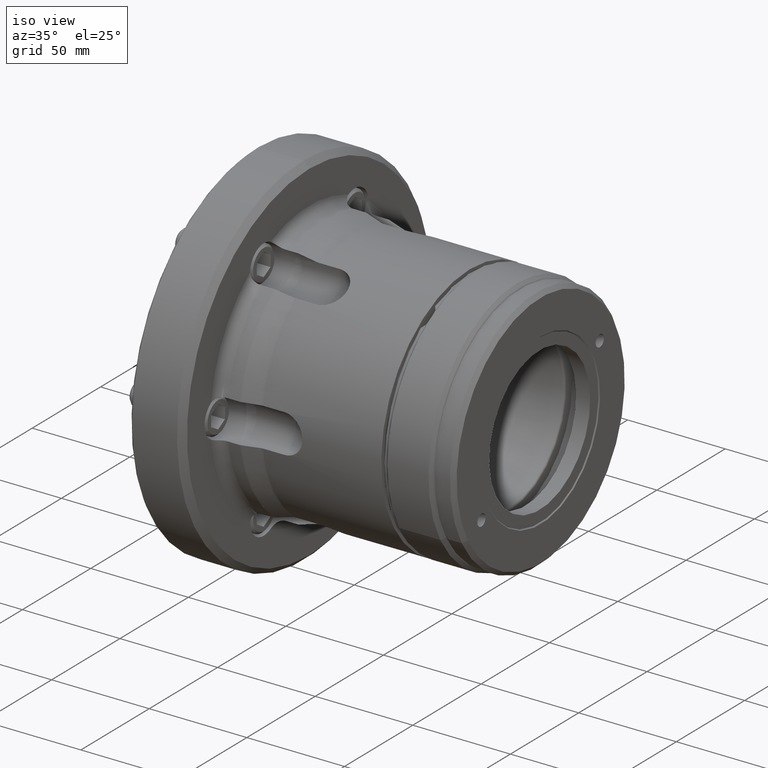
[diagram: clean part render]
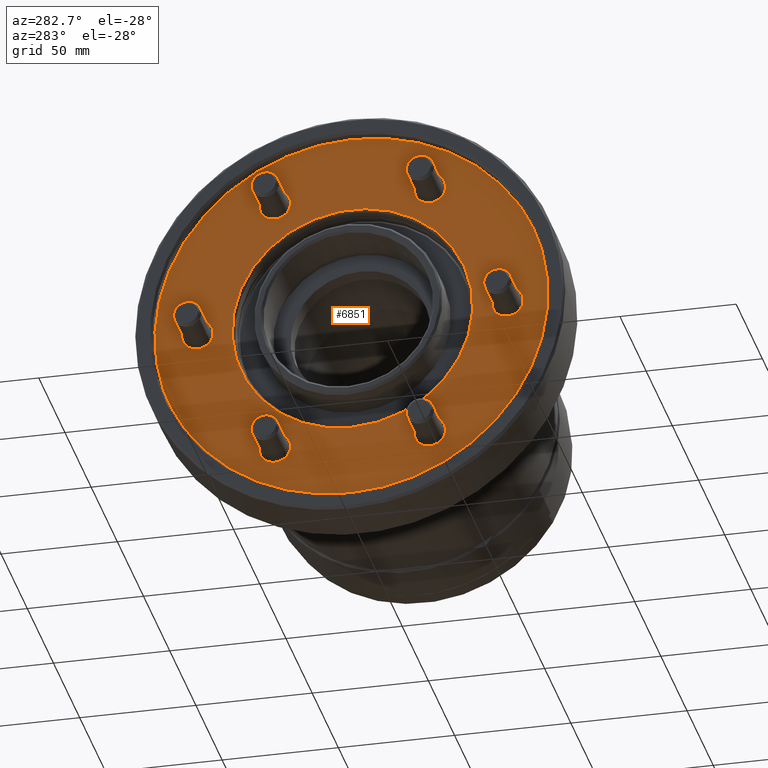
[diagram: tour spotlight — one face highlighted and labeled with its STEP entity id]
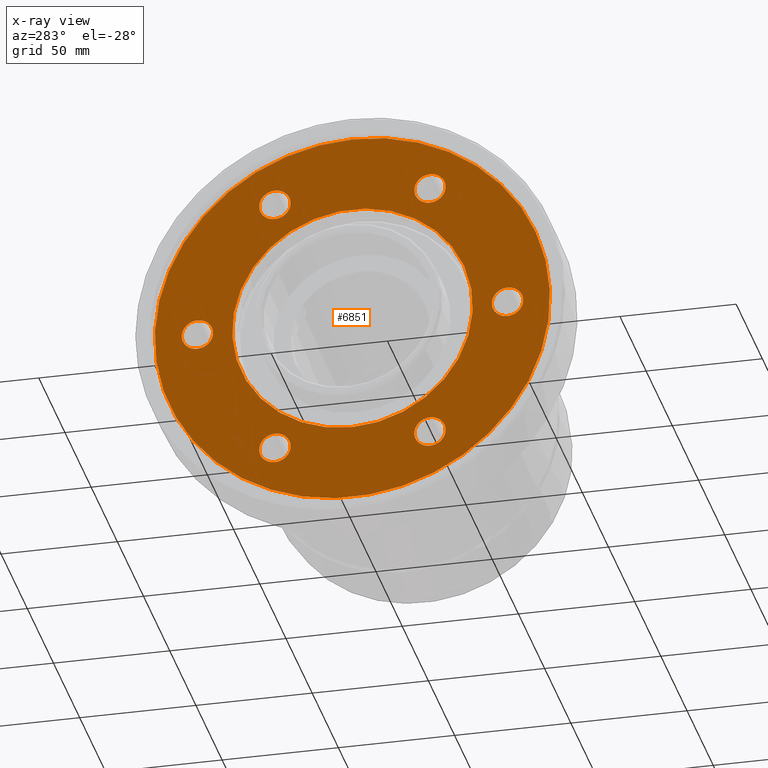
[diagram: x-ray of the same camera — body ghosted, this tour face saturated]
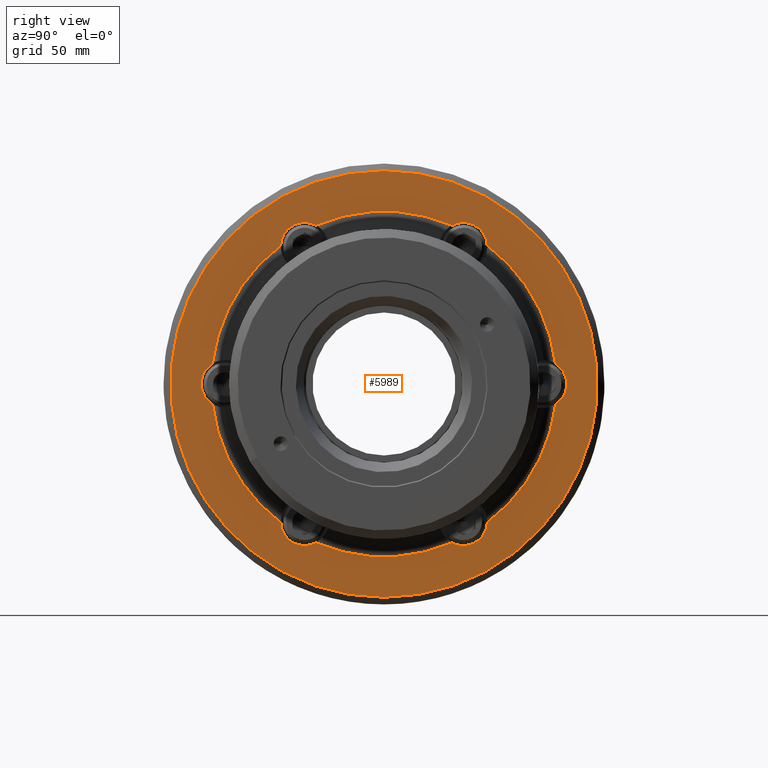
[diagram: tour spotlight — one face highlighted and labeled with its STEP entity id]
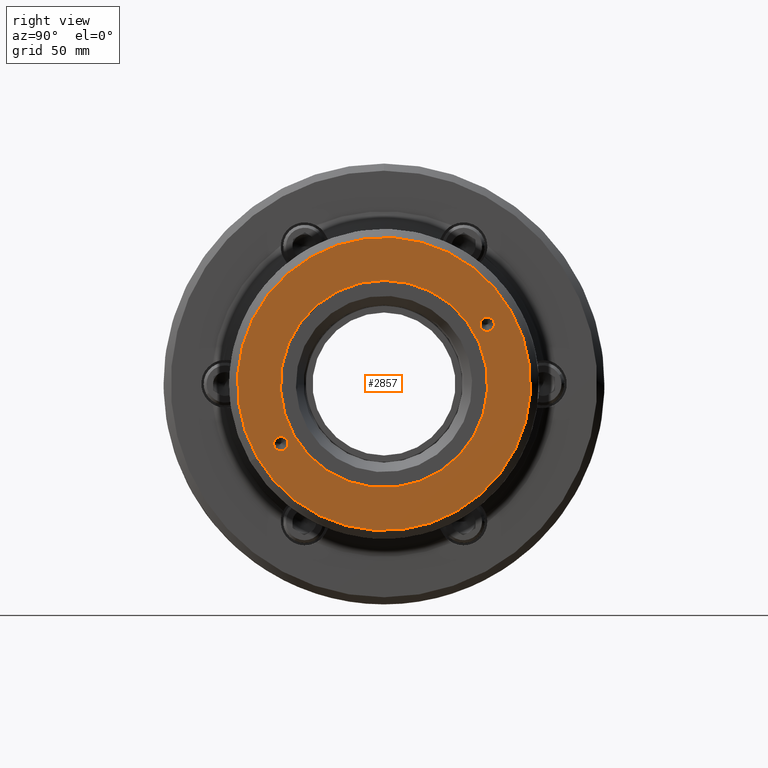
[diagram: tour spotlight — one face highlighted and labeled with its STEP entity id]
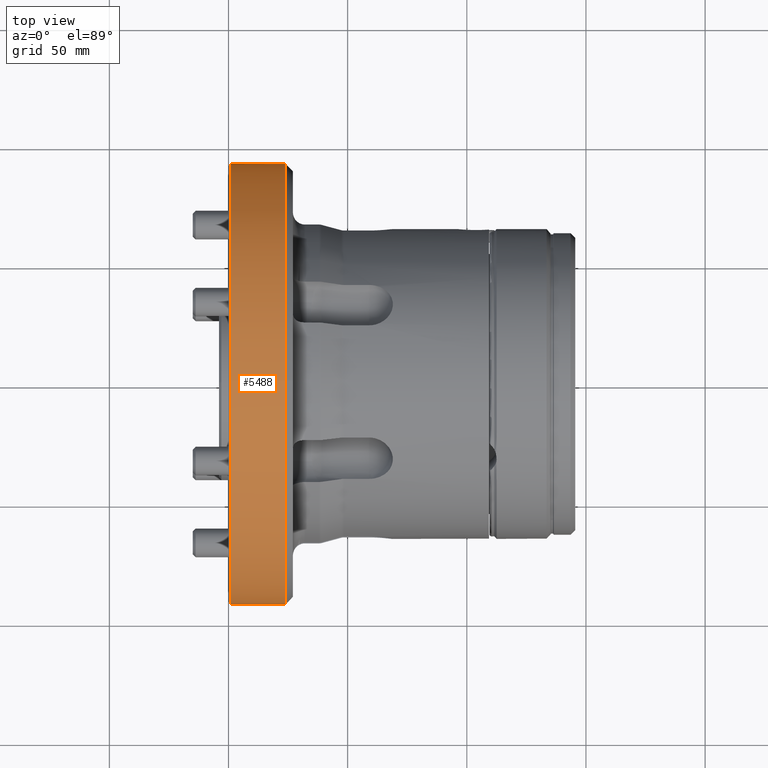
[diagram: tour spotlight — one face highlighted and labeled with its STEP entity id]
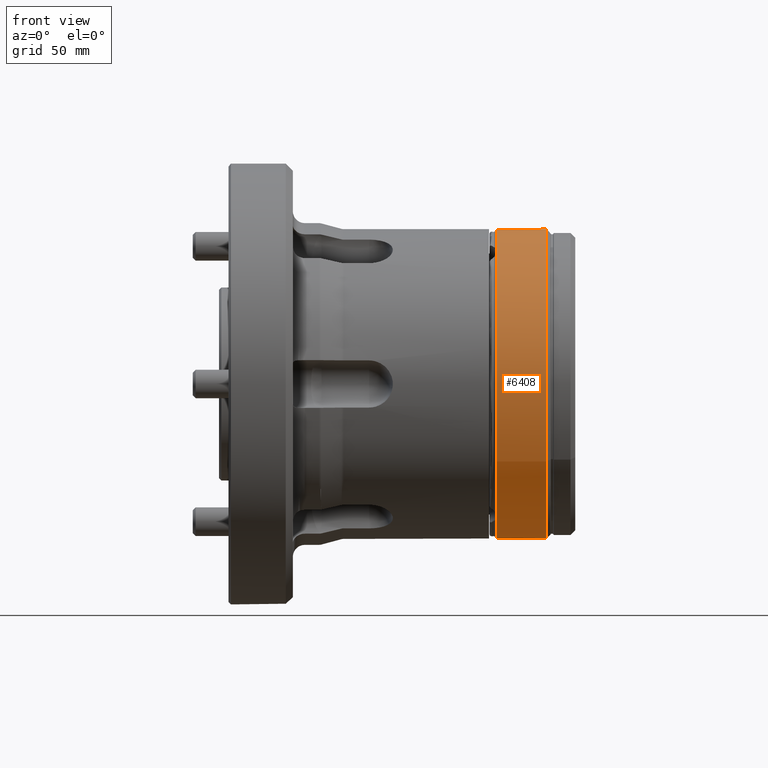
[diagram: tour spotlight — one face highlighted and labeled with its STEP entity id]
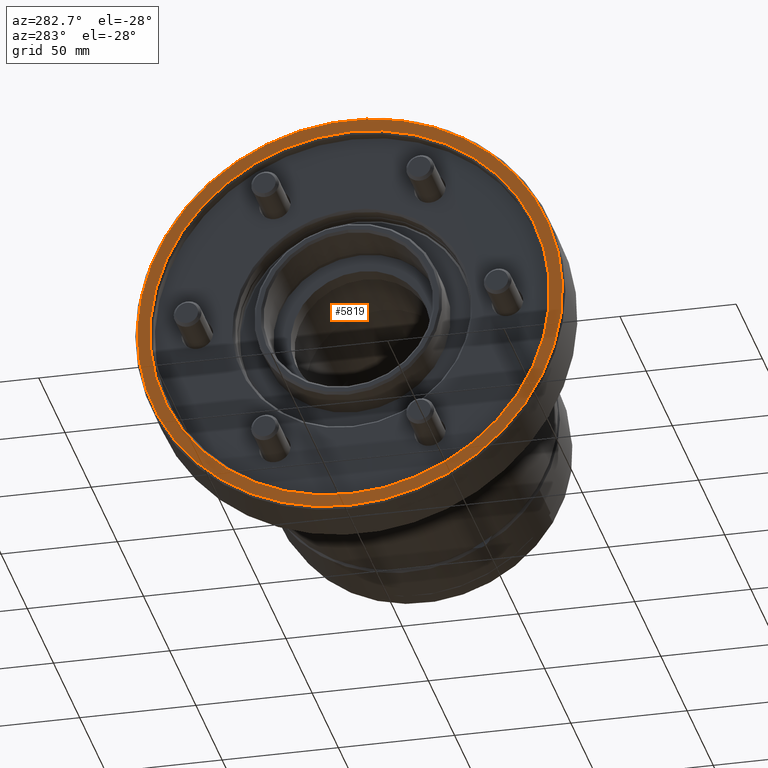
[diagram: tour spotlight — one face highlighted and labeled with its STEP entity id]
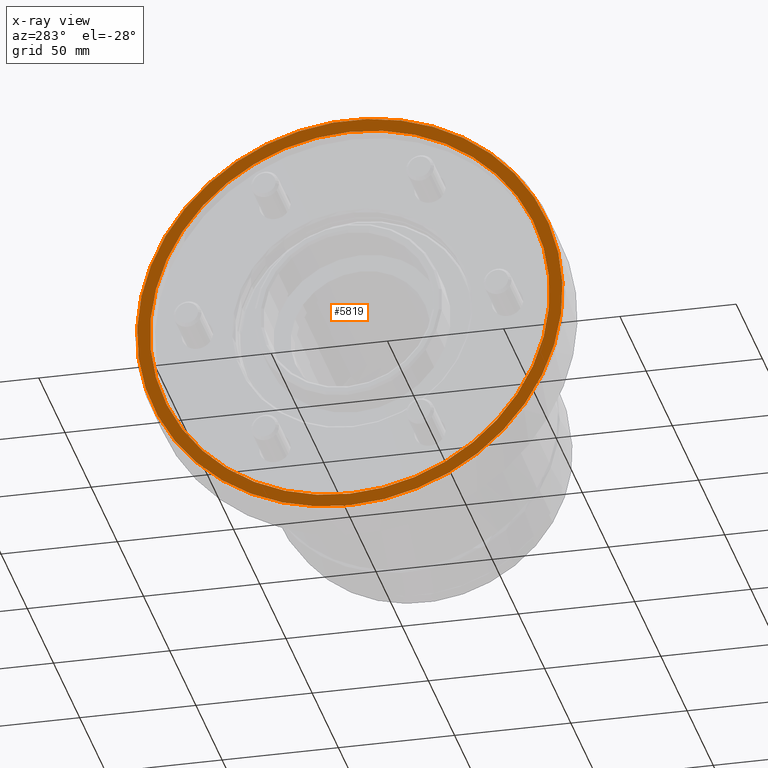
[diagram: x-ray of the same camera — body ghosted, this tour face saturated]
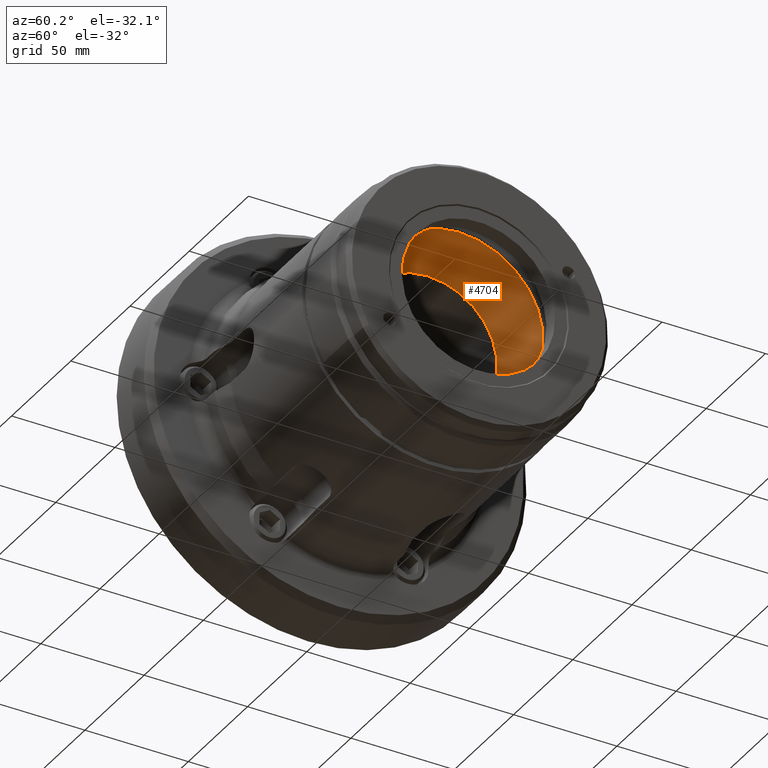
[diagram: tour spotlight — one face highlighted and labeled with its STEP entity id]
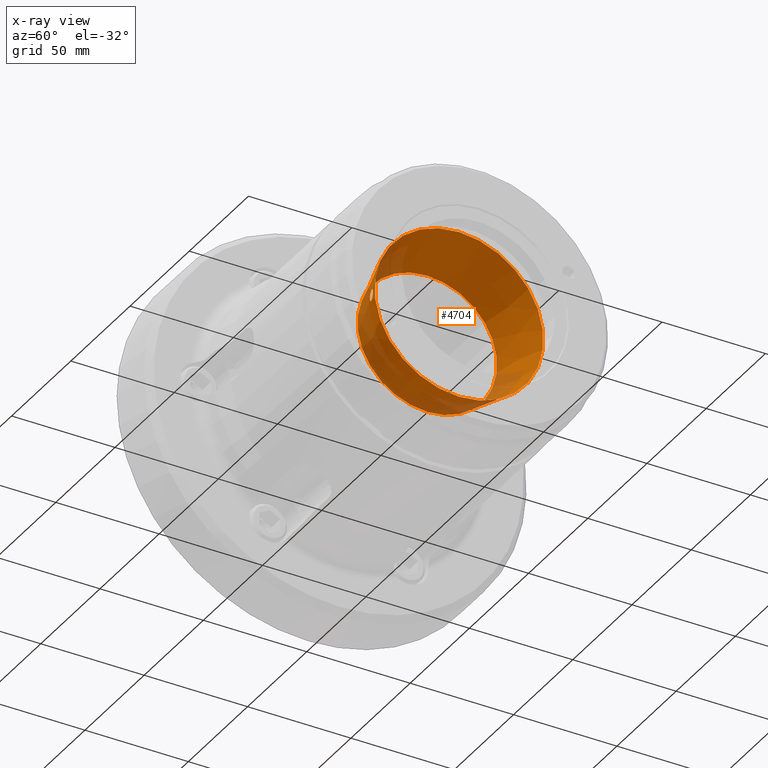
[diagram: x-ray of the same camera — body ghosted, this tour face saturated]
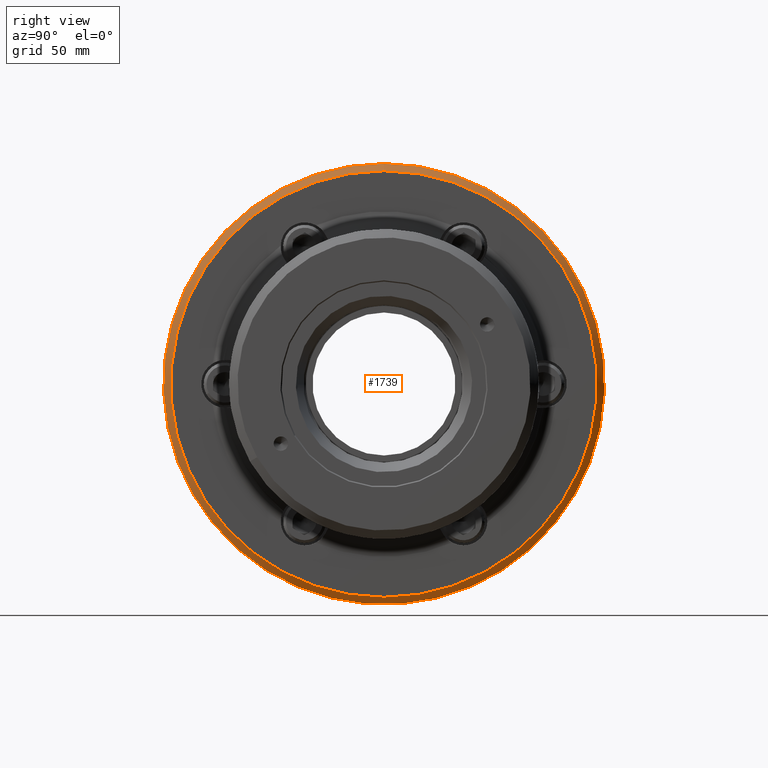
[diagram: tour spotlight — one face highlighted and labeled with its STEP entity id]
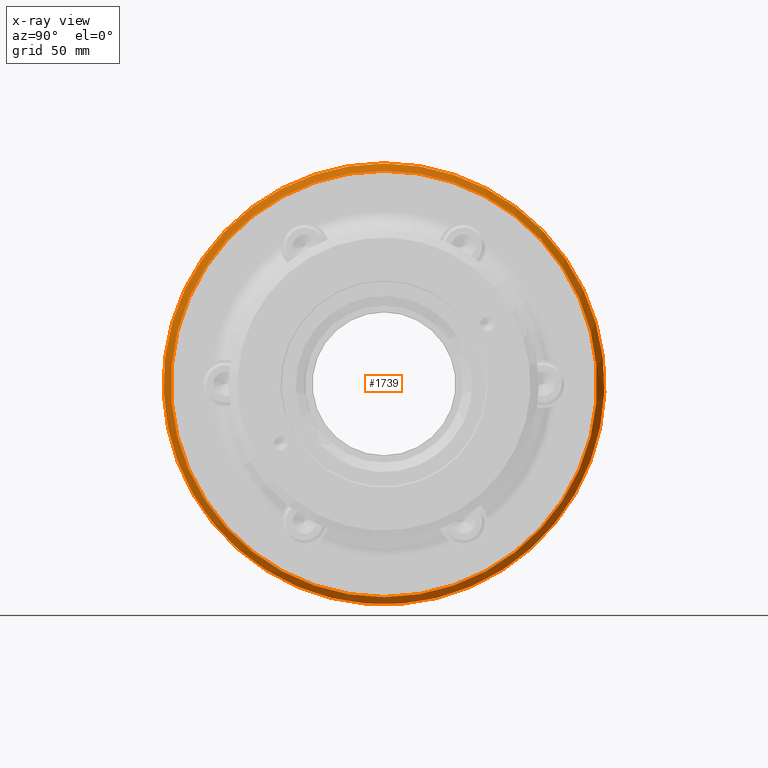
[diagram: x-ray of the same camera — body ghosted, this tour face saturated]
A machine part: a face-by-face anatomy tour. The part has 311 B-rep faces; the first image is the clean iso view, then the 8 largest visible faces are spotlighted one at a time (largest first), each with its STEP entity span.

Face 1 — auxiliary view, entity #6851. An x-ray twin of the same camera follows (body ghosted, this face saturated) — the face is partly hidden behind the body. In plain terms, the highlighted planar face has unit normal (1, 0, 0).
Definition (entity closure, byte-faithful):
#42 = CARTESIAN_POINT ( 'NONE',  ( 5.000000000000004441, -33.35000000000027853, -64.51389443242192101 ) ) ;
#170 = EDGE_CURVE ( 'NONE', #850, #850, #4874, .T. ) ;
#194 = FACE_OUTER_BOUND ( 'NONE', #716, .T. ) ;
#320 = EDGE_LOOP ( 'NONE', ( #2982 ) ) ;
#467 = AXIS2_PLACEMENT_3D ( 'NONE', #6751, #6739, #6732 ) ;
#475 = EDGE_LOOP ( 'NONE', ( #3033 ) ) ;
#525 = AXIS2_PLACEMENT_3D ( 'NONE', #2353, #2341, #2333 ) ;
#645 = EDGE_LOOP ( 'NONE', ( #2993 ) ) ;
#687 = CARTESIAN_POINT ( 'NONE',  ( 5.000000000000004441, 66.70000000000000284, -6.749999999999999112 ) ) ;
#716 = EDGE_LOOP ( 'NONE', ( #3044 ) ) ;
#766 = EDGE_LOOP ( 'NONE', ( #2842 ) ) ;
#795 = FACE_BOUND ( 'NONE', #320, .T. ) ;
#803 = EDGE_CURVE ( 'NONE', #5463, #5463, #2667, .T. ) ;
#831 = DIRECTION ( 'NONE',  ( 0.0000000000000000000, 0.0000000000000000000, -1.000000000000000000 ) ) ;
#850 = VERTEX_POINT ( 'NONE', #2419 ) ;
#1197 = EDGE_CURVE ( 'NONE', #6098, #6098, #1546, .T. ) ;
#1262 = CARTESIAN_POINT ( 'NONE',  ( 5.000000000000000888, 0.0000000000000000000, 0.0000000000000000000 ) ) ;
#1277 = DIRECTION ( 'NONE',  ( 1.000000000000000000, 0.0000000000000000000, 0.0000000000000000000 ) ) ;
#1303 = AXIS2_PLACEMENT_3D ( 'NONE', #3818, #6247, #831 ) ;
#1405 = FACE_BOUND ( 'NONE', #766, .T. ) ;
#1507 = CIRCLE ( 'NONE', #5917, 6.749999999999992006 ) ;
#1546 = CIRCLE ( 'NONE', #525, 6.749999999999999112 ) ;
#1552 = CARTESIAN_POINT ( 'NONE',  ( 5.000000000000004441, -33.34999999999946851, 51.01389443242238286 ) ) ;
#1695 = AXIS2_PLACEMENT_3D ( 'NONE', #3855, #3846, #3837 ) ;
#1765 = EDGE_LOOP ( 'NONE', ( #2827 ) ) ;
#1821 = DIRECTION ( 'NONE',  ( 0.0000000000000000000, 0.0000000000000000000, -1.000000000000000000 ) ) ;
#2022 = DIRECTION ( 'NONE',  ( 0.0000000000000000000, 0.0000000000000000000, -1.000000000000000000 ) ) ;
#2155 = DIRECTION ( 'NONE',  ( 1.000000000000000000, 0.0000000000000000000, 0.0000000000000000000 ) ) ;
#2182 = CARTESIAN_POINT ( 'NONE',  ( 5.000000000000000888, 0.0000000000000000000, 85.00000000000000000 ) ) ;
#2333 = DIRECTION ( 'NONE',  ( 0.0000000000000000000, 0.0000000000000000000, -1.000000000000000000 ) ) ;
#2341 = DIRECTION ( 'NONE',  ( 1.000000000000000000, 0.0000000000000000000, 0.0000000000000000000 ) ) ;
#2353 = CARTESIAN_POINT ( 'NONE',  ( 5.000000000000004441, 66.70000000000000284, 0.0000000000000000000 ) ) ;
#2406 = CARTESIAN_POINT ( 'NONE',  ( 5.000000000000005329, 0.0000000000000000000, -51.74999999999996447 ) ) ;
#2419 = CARTESIAN_POINT ( 'NONE',  ( 5.000000000000004441, -66.70000000000000284, -6.749999999999995559 ) ) ;
#2598 = PLANE ( 'NONE',  #4013 ) ;
#2667 = CIRCLE ( 'NONE', #1695, 6.749999999999999112 ) ;
#2778 = CIRCLE ( 'NONE', #7235, 51.74999999999996447 ) ;
#2827 = ORIENTED_EDGE ( 'NONE', *, *, #6024, .T. ) ;
#2842 = ORIENTED_EDGE ( 'NONE', *, *, #4357, .T. ) ;
#2853 = EDGE_CURVE ( 'NONE', #3780, #3780, #4678, .T. ) ;
#2881 = ORIENTED_EDGE ( 'NONE', *, *, #170, .T. ) ;
#2904 = EDGE_LOOP ( 'NONE', ( #2943 ) ) ;
#2943 = ORIENTED_EDGE ( 'NONE', *, *, #803, .T. ) ;
#2965 = CARTESIAN_POINT ( 'NONE',  ( 5.000000000000004441, 33.35000000000067644, 57.76389443242167943 ) ) ;
#2982 = ORIENTED_EDGE ( 'NONE', *, *, #2853, .T. ) ;
#2993 = ORIENTED_EDGE ( 'NONE', *, *, #1197, .T. ) ;
#3033 = ORIENTED_EDGE ( 'NONE', *, *, #7442, .T. ) ;
#3044 = ORIENTED_EDGE ( 'NONE', *, *, #4853, .T. ) ;
#3055 = AXIS2_PLACEMENT_3D ( 'NONE', #6679, #1277, #3650 ) ;
#3184 = FACE_BOUND ( 'NONE', #645, .T. ) ;
#3436 = AXIS2_PLACEMENT_3D ( 'NONE', #1262, #3635, #6070 ) ;
#3462 = VERTEX_POINT ( 'NONE', #5891 ) ;
#3635 = DIRECTION ( 'NONE',  ( -1.000000000000000000, -0.0000000000000000000, -0.0000000000000000000 ) ) ;
#3650 = DIRECTION ( 'NONE',  ( 0.0000000000000000000, 0.0000000000000000000, -1.000000000000000000 ) ) ;
#3777 = FACE_BOUND ( 'NONE', #6515, .T. ) ;
#3780 = VERTEX_POINT ( 'NONE', #6211 ) ;
#3818 = CARTESIAN_POINT ( 'NONE',  ( 5.000000000000004441, 33.34999999999987352, -57.76389443242214128 ) ) ;
#3837 = DIRECTION ( 'NONE',  ( 0.0000000000000000000, 0.0000000000000000000, -1.000000000000000000 ) ) ;
#3846 = DIRECTION ( 'NONE',  ( 1.000000000000000000, 0.0000000000000000000, 0.0000000000000000000 ) ) ;
#3855 = CARTESIAN_POINT ( 'NONE',  ( 5.000000000000004441, -33.35000000000027853, -57.76389443242192101 ) ) ;
#4013 = AXIS2_PLACEMENT_3D ( 'NONE', #5008, #7455, #2022 ) ;
#4357 = EDGE_CURVE ( 'NONE', #6965, #6965, #6482, .T. ) ;
#4539 = DIRECTION ( 'NONE',  ( 0.0000000000000000000, 0.0000000000000000000, -1.000000000000000000 ) ) ;
#4678 = CIRCLE ( 'NONE', #1303, 6.749999999999999112 ) ;
#4853 = EDGE_CURVE ( 'NONE', #7615, #7615, #6869, .T. ) ;
#4874 = CIRCLE ( 'NONE', #467, 6.749999999999995559 ) ;
#5008 = CARTESIAN_POINT ( 'NONE',  ( 5.000000000000005329, 85.00000000000000000, 0.0000000000000000000 ) ) ;
#5463 = VERTEX_POINT ( 'NONE', #42 ) ;
#5618 = FACE_BOUND ( 'NONE', #475, .T. ) ;
#5891 = CARTESIAN_POINT ( 'NONE',  ( 5.000000000000004441, 33.35000000000067644, 51.01389443242168653 ) ) ;
#5917 = AXIS2_PLACEMENT_3D ( 'NONE', #2965, #7240, #1821 ) ;
#6024 = EDGE_CURVE ( 'NONE', #3462, #3462, #1507, .T. ) ;
#6070 = DIRECTION ( 'NONE',  ( 0.0000000000000000000, 0.0000000000000000000, 1.000000000000000000 ) ) ;
#6098 = VERTEX_POINT ( 'NONE', #687 ) ;
#6207 = FACE_BOUND ( 'NONE', #2904, .T. ) ;
#6211 = CARTESIAN_POINT ( 'NONE',  ( 5.000000000000004441, 33.34999999999987352, -64.51389443242214838 ) ) ;
#6247 = DIRECTION ( 'NONE',  ( 1.000000000000000000, 0.0000000000000000000, 0.0000000000000000000 ) ) ;
#6482 = CIRCLE ( 'NONE', #3055, 6.749999999999992006 ) ;
#6515 = EDGE_LOOP ( 'NONE', ( #2881 ) ) ;
#6679 = CARTESIAN_POINT ( 'NONE',  ( 5.000000000000004441, -33.34999999999946851, 57.76389443242236865 ) ) ;
#6732 = DIRECTION ( 'NONE',  ( 0.0000000000000000000, 0.0000000000000000000, -1.000000000000000000 ) ) ;
#6739 = DIRECTION ( 'NONE',  ( 1.000000000000000000, 0.0000000000000000000, 0.0000000000000000000 ) ) ;
#6751 = CARTESIAN_POINT ( 'NONE',  ( 5.000000000000004441, -66.70000000000000284, 0.0000000000000000000 ) ) ;
#6802 = FACE_BOUND ( 'NONE', #1765, .T. ) ;
#6851 = ADVANCED_FACE ( 'NONE', ( #6802, #1405, #3777, #6207, #795, #3184, #5618, #194 ), #2598, .F. ) ;
#6869 = CIRCLE ( 'NONE', #3436, 85.00000000000000000 ) ;
#6965 = VERTEX_POINT ( 'NONE', #1552 ) ;
#7235 = AXIS2_PLACEMENT_3D ( 'NONE', #7594, #2155, #4539 ) ;
#7240 = DIRECTION ( 'NONE',  ( 1.000000000000000000, 0.0000000000000000000, 0.0000000000000000000 ) ) ;
#7442 = EDGE_CURVE ( 'NONE', #7855, #7855, #2778, .T. ) ;
#7455 = DIRECTION ( 'NONE',  ( 1.000000000000000000, 0.0000000000000000000, 0.0000000000000000000 ) ) ;
#7594 = CARTESIAN_POINT ( 'NONE',  ( 5.000000000000005329, 0.0000000000000000000, 0.0000000000000000000 ) ) ;
#7615 = VERTEX_POINT ( 'NONE', #2182 ) ;
#7855 = VERTEX_POINT ( 'NONE', #2406 ) ;

Face 2 — right view, entity #5989. In plain terms, the highlighted planar face has unit normal (-1, 0, 0).
Definition (entity closure, byte-faithful):
#70 = EDGE_LOOP ( 'NONE', ( #2376 ) ) ;
#77 = VERTEX_POINT ( 'NONE', #2489 ) ;
#162 = CIRCLE ( 'NONE', #4564, 72.50000000000001421 ) ;
#238 = DIRECTION ( 'NONE',  ( 0.0000000000000000000, 0.0000000000000000000, -1.000000000000000000 ) ) ;
#240 = VERTEX_POINT ( 'NONE', #6437 ) ;
#343 = CARTESIAN_POINT ( 'NONE',  ( 27.00000000000000355, 33.34999999999987352, -57.76389443242214128 ) ) ;
#349 = CIRCLE ( 'NONE', #5784, 72.50000000000001421 ) ;
#494 = CIRCLE ( 'NONE', #4899, 72.50000000000001421 ) ;
#613 = EDGE_CURVE ( 'NONE', #2360, #1389, #2433, .T. ) ;
#693 = AXIS2_PLACEMENT_3D ( 'NONE', #343, #2746, #5162 ) ;
#739 = CARTESIAN_POINT ( 'NONE',  ( 27.00000000000000355, -72.00254872563837694, 8.478382924368936813 ) ) ;
#790 = EDGE_LOOP ( 'NONE', ( #2391, #2410, #2412, #2463, #2493, #2529, #2552, #2578, #2587, #2642, #2652, #2689 ) ) ;
#791 = AXIS2_PLACEMENT_3D ( 'NONE', #5365, #7817, #2370 ) ;
#806 = CIRCLE ( 'NONE', #5213, 10.00000000000000178 ) ;
#957 = EDGE_CURVE ( 'NONE', #4432, #4659, #6837, .T. ) ;
#990 = VERTEX_POINT ( 'NONE', #3412 ) ;
#992 = AXIS2_PLACEMENT_3D ( 'NONE', #2659, #6912, #1499 ) ;
#1031 = AXIS2_PLACEMENT_3D ( 'NONE', #3442, #3435, #3421 ) ;
#1185 = DIRECTION ( 'NONE',  ( -1.000000000000000000, 0.0000000000000000000, -0.0000000000000000000 ) ) ;
#1358 = EDGE_CURVE ( 'NONE', #77, #77, #2067, .T. ) ;
#1376 = DIRECTION ( 'NONE',  ( -1.000000000000000000, -0.0000000000000000000, -0.0000000000000000000 ) ) ;
#1389 = VERTEX_POINT ( 'NONE', #1653 ) ;
#1452 = CARTESIAN_POINT ( 'NONE',  ( 27.00000000000000355, -66.70000000000000284, 0.0000000000000000000 ) ) ;
#1469 = DIRECTION ( 'NONE',  ( 0.0000000000000000000, 0.0000000000000000000, 1.000000000000000000 ) ) ;
#1499 = DIRECTION ( 'NONE',  ( 0.0000000000000000000, 0.0000000000000000000, -1.000000000000000000 ) ) ;
#1557 = VERTEX_POINT ( 'NONE', #739 ) ;
#1647 = DIRECTION ( 'NONE',  ( -1.000000000000000000, -0.0000000000000000000, -0.0000000000000000000 ) ) ;
#1653 = CARTESIAN_POINT ( 'NONE',  ( 27.00000000000000355, 28.65877936730302622, 66.59522779581317309 ) ) ;
#1728 = DIRECTION ( 'NONE',  ( 0.0000000000000000000, 0.0000000000000000000, -1.000000000000000000 ) ) ;
#1731 = DIRECTION ( 'NONE',  ( 0.0000000000000000000, 0.0000000000000000000, 1.000000000000000000 ) ) ;
#1735 = DIRECTION ( 'NONE',  ( 1.000000000000000000, 0.0000000000000000000, 0.0000000000000000000 ) ) ;
#1744 = CARTESIAN_POINT ( 'NONE',  ( 27.00000000000000355, 72.00254872563718322, 8.478382924369682883 ) ) ;
#1746 = CARTESIAN_POINT ( 'NONE',  ( 27.00000000000000355, 0.0000000000000000000, 0.0000000000000000000 ) ) ;
#1781 = FACE_BOUND ( 'NONE', #790, .T. ) ;
#1789 = DIRECTION ( 'NONE',  ( 0.0000000000000000000, 0.0000000000000000000, 1.000000000000000000 ) ) ;
#1812 = AXIS2_PLACEMENT_3D ( 'NONE', #4758, #7207, #1789 ) ;
#2067 = CIRCLE ( 'NONE', #2916, 89.50000000000001421 ) ;
#2360 = VERTEX_POINT ( 'NONE', #5562 ) ;
#2362 = CARTESIAN_POINT ( 'NONE',  ( 27.00000000000000355, -33.35000000000027853, -57.76389443242192101 ) ) ;
#2370 = DIRECTION ( 'NONE',  ( 0.0000000000000000000, 0.0000000000000000000, 1.000000000000000000 ) ) ;
#2376 = ORIENTED_EDGE ( 'NONE', *, *, #1358, .T. ) ;
#2391 = ORIENTED_EDGE ( 'NONE', *, *, #613, .F. ) ;
#2410 = ORIENTED_EDGE ( 'NONE', *, *, #3139, .T. ) ;
#2412 = ORIENTED_EDGE ( 'NONE', *, *, #7752, .F. ) ;
#2433 = CIRCLE ( 'NONE', #4433, 9.999999999999994671 ) ;
#2463 = ORIENTED_EDGE ( 'NONE', *, *, #6542, .T. ) ;
#2489 = CARTESIAN_POINT ( 'NONE',  ( 27.00000000000000355, 0.0000000000000000000, 89.50000000000001421 ) ) ;
#2493 = ORIENTED_EDGE ( 'NONE', *, *, #5489, .F. ) ;
#2529 = ORIENTED_EDGE ( 'NONE', *, *, #957, .T. ) ;
#2552 = ORIENTED_EDGE ( 'NONE', *, *, #4746, .F. ) ;
#2578 = ORIENTED_EDGE ( 'NONE', *, *, #3102, .T. ) ;
#2587 = ORIENTED_EDGE ( 'NONE', *, *, #7692, .F. ) ;
#2642 = ORIENTED_EDGE ( 'NONE', *, *, #5674, .T. ) ;
#2652 = ORIENTED_EDGE ( 'NONE', *, *, #5705, .F. ) ;
#2653 = CIRCLE ( 'NONE', #7102, 9.999999999999994671 ) ;
#2659 = CARTESIAN_POINT ( 'NONE',  ( 27.00000000000000355, -33.34999999999946851, 57.76389443242236865 ) ) ;
#2689 = ORIENTED_EDGE ( 'NONE', *, *, #4137, .T. ) ;
#2746 = DIRECTION ( 'NONE',  ( 1.000000000000000000, -0.0000000000000000000, -0.0000000000000000000 ) ) ;
#2871 = CARTESIAN_POINT ( 'NONE',  ( 27.00000000000000355, 66.70000000000000284, 0.0000000000000000000 ) ) ;
#2916 = AXIS2_PLACEMENT_3D ( 'NONE', #1746, #1735, #1731 ) ;
#3102 = EDGE_CURVE ( 'NONE', #4919, #240, #4179, .T. ) ;
#3132 = CARTESIAN_POINT ( 'NONE',  ( 27.00000000000000355, 28.65877936730210251, -66.59522779581357099 ) ) ;
#3139 = EDGE_CURVE ( 'NONE', #2360, #5976, #5189, .T. ) ;
#3412 = CARTESIAN_POINT ( 'NONE',  ( 27.00000000000000355, -43.34376935833439859, 58.11684487144422206 ) ) ;
#3421 = DIRECTION ( 'NONE',  ( 0.0000000000000000000, 0.0000000000000000000, 1.000000000000000000 ) ) ;
#3435 = DIRECTION ( 'NONE',  ( -1.000000000000000000, -0.0000000000000000000, -0.0000000000000000000 ) ) ;
#3442 = CARTESIAN_POINT ( 'NONE',  ( 27.00000000000000355, 0.0000000000000000000, 0.0000000000000000000 ) ) ;
#3565 = DIRECTION ( 'NONE',  ( -0.0000000000000000000, 0.0000000000000000000, 1.000000000000000000 ) ) ;
#3751 = DIRECTION ( 'NONE',  ( 0.0000000000000000000, 0.0000000000000000000, 1.000000000000000000 ) ) ;
#4014 = VERTEX_POINT ( 'NONE', #4191 ) ;
#4017 = DIRECTION ( 'NONE',  ( 0.0000000000000000000, 0.0000000000000000000, 1.000000000000000000 ) ) ;
#4083 = CARTESIAN_POINT ( 'NONE',  ( 27.00000000000000355, -28.65877936730255016, -66.59522779581338625 ) ) ;
#4103 = CARTESIAN_POINT ( 'NONE',  ( 27.00000000000000355, 72.00254872563718322, -8.478382924369682883 ) ) ;
#4137 = EDGE_CURVE ( 'NONE', #4839, #1389, #162, .T. ) ;
#4156 = PLANE ( 'NONE',  #4895 ) ;
#4179 = CIRCLE ( 'NONE', #791, 72.50000000000001421 ) ;
#4191 = CARTESIAN_POINT ( 'NONE',  ( 27.00000000000000355, 43.34376935833524414, -58.11684487143141098 ) ) ;
#4302 = AXIS2_PLACEMENT_3D ( 'NONE', #2871, #7138, #1728 ) ;
#4379 = CIRCLE ( 'NONE', #992, 9.999999999999994671 ) ;
#4432 = VERTEX_POINT ( 'NONE', #3132 ) ;
#4433 = AXIS2_PLACEMENT_3D ( 'NONE', #4828, #4817, #4803 ) ;
#4440 = CARTESIAN_POINT ( 'NONE',  ( 27.00000000000000355, 0.0000000000000000000, 0.0000000000000000000 ) ) ;
#4564 = AXIS2_PLACEMENT_3D ( 'NONE', #6774, #1376, #3751 ) ;
#4659 = VERTEX_POINT ( 'NONE', #4083 ) ;
#4746 = EDGE_CURVE ( 'NONE', #4919, #4659, #806, .T. ) ;
#4748 = DIRECTION ( 'NONE',  ( 1.000000000000000000, -0.0000000000000000000, -0.0000000000000000000 ) ) ;
#4758 = CARTESIAN_POINT ( 'NONE',  ( 27.00000000000000355, 0.0000000000000000000, 0.0000000000000000000 ) ) ;
#4803 = DIRECTION ( 'NONE',  ( 0.0000000000000000000, 0.0000000000000000000, -1.000000000000000000 ) ) ;
#4817 = DIRECTION ( 'NONE',  ( 1.000000000000000000, -0.0000000000000000000, -0.0000000000000000000 ) ) ;
#4828 = CARTESIAN_POINT ( 'NONE',  ( 27.00000000000000355, 33.35000000000067644, 57.76389443242167943 ) ) ;
#4839 = VERTEX_POINT ( 'NONE', #5430 ) ;
#4895 = AXIS2_PLACEMENT_3D ( 'NONE', #6587, #1185, #3565 ) ;
#4899 = AXIS2_PLACEMENT_3D ( 'NONE', #7052, #1647, #4017 ) ;
#4919 = VERTEX_POINT ( 'NONE', #6742 ) ;
#5162 = DIRECTION ( 'NONE',  ( 0.0000000000000000000, 0.0000000000000000000, -1.000000000000000000 ) ) ;
#5189 = CIRCLE ( 'NONE', #1812, 72.50000000000001421 ) ;
#5213 = AXIS2_PLACEMENT_3D ( 'NONE', #2362, #4748, #7191 ) ;
#5365 = CARTESIAN_POINT ( 'NONE',  ( 27.00000000000000355, 0.0000000000000000000, 0.0000000000000000000 ) ) ;
#5430 = CARTESIAN_POINT ( 'NONE',  ( 27.00000000000000355, -28.65877936728718822, 66.59522779580609608 ) ) ;
#5489 = EDGE_CURVE ( 'NONE', #4432, #4014, #7526, .T. ) ;
#5562 = CARTESIAN_POINT ( 'NONE',  ( 27.00000000000000355, 43.34376935833561362, 58.11684487144331968 ) ) ;
#5658 = DIRECTION ( 'NONE',  ( 1.000000000000000000, -0.0000000000000000000, -0.0000000000000000000 ) ) ;
#5674 = EDGE_CURVE ( 'NONE', #1557, #990, #349, .T. ) ;
#5705 = EDGE_CURVE ( 'NONE', #4839, #990, #4379, .T. ) ;
#5784 = AXIS2_PLACEMENT_3D ( 'NONE', #4440, #6877, #1469 ) ;
#5976 = VERTEX_POINT ( 'NONE', #1744 ) ;
#5989 = ADVANCED_FACE ( 'NONE', ( #7196, #1781 ), #4156, .F. ) ;
#6437 = CARTESIAN_POINT ( 'NONE',  ( 27.00000000000000355, -72.00254872563718322, -8.478382924369682883 ) ) ;
#6542 = EDGE_CURVE ( 'NONE', #7798, #4014, #494, .T. ) ;
#6587 = CARTESIAN_POINT ( 'NONE',  ( 27.00000000000000355, 92.50000000000000000, 0.0000000000000000000 ) ) ;
#6714 = CIRCLE ( 'NONE', #4302, 9.999999999999994671 ) ;
#6742 = CARTESIAN_POINT ( 'NONE',  ( 27.00000000000000355, -43.34376935833564914, -58.11684487143117650 ) ) ;
#6774 = CARTESIAN_POINT ( 'NONE',  ( 27.00000000000000355, 0.0000000000000000000, 0.0000000000000000000 ) ) ;
#6837 = CIRCLE ( 'NONE', #1031, 72.50000000000001421 ) ;
#6877 = DIRECTION ( 'NONE',  ( -1.000000000000000000, -0.0000000000000000000, -0.0000000000000000000 ) ) ;
#6912 = DIRECTION ( 'NONE',  ( 1.000000000000000000, -0.0000000000000000000, -0.0000000000000000000 ) ) ;
#7052 = CARTESIAN_POINT ( 'NONE',  ( 27.00000000000000355, 0.0000000000000000000, 0.0000000000000000000 ) ) ;
#7102 = AXIS2_PLACEMENT_3D ( 'NONE', #1452, #5658, #238 ) ;
#7138 = DIRECTION ( 'NONE',  ( 1.000000000000000000, -0.0000000000000000000, -0.0000000000000000000 ) ) ;
#7191 = DIRECTION ( 'NONE',  ( 0.0000000000000000000, 0.0000000000000000000, -1.000000000000000000 ) ) ;
#7196 = FACE_OUTER_BOUND ( 'NONE', #70, .T. ) ;
#7207 = DIRECTION ( 'NONE',  ( -1.000000000000000000, -0.0000000000000000000, -0.0000000000000000000 ) ) ;
#7526 = CIRCLE ( 'NONE', #693, 10.00000000000000178 ) ;
#7692 = EDGE_CURVE ( 'NONE', #1557, #240, #2653, .T. ) ;
#7752 = EDGE_CURVE ( 'NONE', #7798, #5976, #6714, .T. ) ;
#7798 = VERTEX_POINT ( 'NONE', #4103 ) ;
#7817 = DIRECTION ( 'NONE',  ( -1.000000000000000000, -0.0000000000000000000, -0.0000000000000000000 ) ) ;

Face 3 — right view, entity #2857. In plain terms, the highlighted planar face has unit normal (-1, 0, 0).
Definition (entity closure, byte-faithful):
#91 = DIRECTION ( 'NONE',  ( 0.0000000000000000000, 0.0000000000000000000, 1.000000000000000000 ) ) ;
#432 = AXIS2_PLACEMENT_3D ( 'NONE', #3741, #6169, #753 ) ;
#740 = EDGE_LOOP ( 'NONE', ( #7439 ) ) ;
#753 = DIRECTION ( 'NONE',  ( 0.0000000000000000000, 0.0000000000000000000, -1.000000000000000000 ) ) ;
#776 = CARTESIAN_POINT ( 'NONE',  ( 36.00000000000000000, 0.0000000000000000000, 50.00000000000000000 ) ) ;
#798 = VERTEX_POINT ( 'NONE', #3187 ) ;
#1352 = EDGE_LOOP ( 'NONE', ( #7404 ) ) ;
#1474 = CARTESIAN_POINT ( 'NONE',  ( 36.00000000000000000, 63.50000000000000000, 0.0000000000000000000 ) ) ;
#1768 = CIRCLE ( 'NONE', #6174, 3.000000000000002665 ) ;
#2060 = FACE_BOUND ( 'NONE', #740, .T. ) ;
#2223 = VERTEX_POINT ( 'NONE', #4604 ) ;
#2857 = ADVANCED_FACE ( 'NONE', ( #3219, #7495, #2060, #4449 ), #6884, .F. ) ;
#2918 = EDGE_CURVE ( 'NONE', #798, #798, #3280, .T. ) ;
#3058 = AXIS2_PLACEMENT_3D ( 'NONE', #3081, #5516, #91 ) ;
#3081 = CARTESIAN_POINT ( 'NONE',  ( 36.00000000000000000, 0.0000000000000000000, 0.0000000000000000000 ) ) ;
#3165 = DIRECTION ( 'NONE',  ( 1.000000000000000000, -0.0000000000000000000, -0.0000000000000000000 ) ) ;
#3187 = CARTESIAN_POINT ( 'NONE',  ( 36.00000000000000000, 0.0000000000000000000, 61.50000000000000000 ) ) ;
#3219 = FACE_OUTER_BOUND ( 'NONE', #1352, .T. ) ;
#3280 = CIRCLE ( 'NONE', #7761, 61.50000000000000000 ) ;
#3741 = CARTESIAN_POINT ( 'NONE',  ( 36.00000000000000000, 0.0000000000000000000, -50.00000000000000000 ) ) ;
#3824 = CIRCLE ( 'NONE', #432, 3.000000000000002665 ) ;
#3852 = DIRECTION ( 'NONE',  ( -1.000000000000000000, 0.0000000000000000000, -0.0000000000000000000 ) ) ;
#3891 = DIRECTION ( 'NONE',  ( 1.000000000000000000, 0.0000000000000000000, 0.0000000000000000000 ) ) ;
#4449 = FACE_BOUND ( 'NONE', #4918, .T. ) ;
#4464 = EDGE_LOOP ( 'NONE', ( #7429 ) ) ;
#4567 = VERTEX_POINT ( 'NONE', #7010 ) ;
#4604 = CARTESIAN_POINT ( 'NONE',  ( 36.00000000000000000, 0.0000000000000000000, -53.00000000000000711 ) ) ;
#4905 = EDGE_CURVE ( 'NONE', #4567, #4567, #6490, .T. ) ;
#4918 = EDGE_LOOP ( 'NONE', ( #7450 ) ) ;
#5282 = VERTEX_POINT ( 'NONE', #7734 ) ;
#5344 = EDGE_CURVE ( 'NONE', #2223, #2223, #3824, .T. ) ;
#5516 = DIRECTION ( 'NONE',  ( -1.000000000000000000, -0.0000000000000000000, -0.0000000000000000000 ) ) ;
#5604 = DIRECTION ( 'NONE',  ( 0.0000000000000000000, 0.0000000000000000000, -1.000000000000000000 ) ) ;
#5707 = AXIS2_PLACEMENT_3D ( 'NONE', #1474, #3852, #6281 ) ;
#6141 = EDGE_CURVE ( 'NONE', #5282, #5282, #1768, .T. ) ;
#6169 = DIRECTION ( 'NONE',  ( 1.000000000000000000, -0.0000000000000000000, -0.0000000000000000000 ) ) ;
#6174 = AXIS2_PLACEMENT_3D ( 'NONE', #776, #3165, #5604 ) ;
#6281 = DIRECTION ( 'NONE',  ( -0.0000000000000000000, 0.0000000000000000000, 1.000000000000000000 ) ) ;
#6321 = DIRECTION ( 'NONE',  ( 0.0000000000000000000, 0.0000000000000000000, 1.000000000000000000 ) ) ;
#6490 = CIRCLE ( 'NONE', #3058, 43.50000000000000000 ) ;
#6884 = PLANE ( 'NONE',  #5707 ) ;
#7010 = CARTESIAN_POINT ( 'NONE',  ( 36.00000000000000000, 0.0000000000000000000, 43.50000000000000000 ) ) ;
#7404 = ORIENTED_EDGE ( 'NONE', *, *, #2918, .T. ) ;
#7429 = ORIENTED_EDGE ( 'NONE', *, *, #5344, .F. ) ;
#7439 = ORIENTED_EDGE ( 'NONE', *, *, #6141, .F. ) ;
#7450 = ORIENTED_EDGE ( 'NONE', *, *, #4905, .T. ) ;
#7495 = FACE_BOUND ( 'NONE', #4464, .T. ) ;
#7534 = CARTESIAN_POINT ( 'NONE',  ( 36.00000000000000000, 0.0000000000000000000, 0.0000000000000000000 ) ) ;
#7734 = CARTESIAN_POINT ( 'NONE',  ( 36.00000000000000000, 0.0000000000000000000, 47.00000000000000000 ) ) ;
#7761 = AXIS2_PLACEMENT_3D ( 'NONE', #7534, #3891, #6321 ) ;

Face 4 — top view, entity #5488. In plain terms, the highlighted cylindrical surface (bore or boss wall) has radius 92.5 mm, axis along (-1, -0, -0).
Definition (entity closure, byte-faithful):
#122 = EDGE_CURVE ( 'NONE', #2989, #2989, #6260, .T. ) ;
#610 = EDGE_LOOP ( 'NONE', ( #3155 ) ) ;
#666 = EDGE_LOOP ( 'NONE', ( #3146 ) ) ;
#951 = CARTESIAN_POINT ( 'NONE',  ( 0.0000000000000000000, 0.0000000000000000000, 0.0000000000000000000 ) ) ;
#1551 = FACE_OUTER_BOUND ( 'NONE', #666, .T. ) ;
#2255 = CARTESIAN_POINT ( 'NONE',  ( 24.00000000000002842, 0.0000000000000000000, 92.50000000000000000 ) ) ;
#2263 = AXIS2_PLACEMENT_3D ( 'NONE', #7728, #2287, #4672 ) ;
#2287 = DIRECTION ( 'NONE',  ( -1.000000000000000000, -0.0000000000000000000, -0.0000000000000000000 ) ) ;
#2989 = VERTEX_POINT ( 'NONE', #5422 ) ;
#3146 = ORIENTED_EDGE ( 'NONE', *, *, #5885, .T. ) ;
#3155 = ORIENTED_EDGE ( 'NONE', *, *, #122, .T. ) ;
#3334 = DIRECTION ( 'NONE',  ( -1.000000000000000000, -0.0000000000000000000, -0.0000000000000000000 ) ) ;
#3857 = AXIS2_PLACEMENT_3D ( 'NONE', #6795, #6783, #6775 ) ;
#3936 = FACE_OUTER_BOUND ( 'NONE', #610, .T. ) ;
#4079 = AXIS2_PLACEMENT_3D ( 'NONE', #951, #3334, #5769 ) ;
#4672 = DIRECTION ( 'NONE',  ( 0.0000000000000000000, 0.0000000000000000000, 1.000000000000000000 ) ) ;
#5422 = CARTESIAN_POINT ( 'NONE',  ( 0.9999999999998755440, 0.0000000000000000000, -92.50000000000000000 ) ) ;
#5488 = ADVANCED_FACE ( 'NONE', ( #1551, #3936 ), #6369, .T. ) ;
#5657 = CIRCLE ( 'NONE', #2263, 92.50000000000000000 ) ;
#5769 = DIRECTION ( 'NONE',  ( 0.0000000000000000000, 0.0000000000000000000, 1.000000000000000000 ) ) ;
#5885 = EDGE_CURVE ( 'NONE', #7697, #7697, #5657, .T. ) ;
#6260 = CIRCLE ( 'NONE', #3857, 92.50000000000000000 ) ;
#6369 = CYLINDRICAL_SURFACE ( 'NONE', #4079, 92.50000000000000000 ) ;
#6775 = DIRECTION ( 'NONE',  ( 0.0000000000000000000, 0.0000000000000000000, -1.000000000000000000 ) ) ;
#6783 = DIRECTION ( 'NONE',  ( 1.000000000000000000, 0.0000000000000000000, 0.0000000000000000000 ) ) ;
#6795 = CARTESIAN_POINT ( 'NONE',  ( 0.9999999999998755440, 0.0000000000000000000, 0.0000000000000000000 ) ) ;
#7697 = VERTEX_POINT ( 'NONE', #2255 ) ;
#7728 = CARTESIAN_POINT ( 'NONE',  ( 24.00000000000002842, 0.0000000000000000000, 0.0000000000000000000 ) ) ;

Face 5 — front view, entity #6408. In plain terms, the highlighted cylindrical surface (bore or boss wall) has radius 65 mm, axis along (-1, 0, 0).
Definition (entity closure, byte-faithful):
#51 = AXIS2_PLACEMENT_3D ( 'NONE', #7457, #2024, #4409 ) ;
#279 = VERTEX_POINT ( 'NONE', #6134 ) ;
#315 = FACE_OUTER_BOUND ( 'NONE', #5977, .T. ) ;
#347 = ORIENTED_EDGE ( 'NONE', *, *, #5585, .T. ) ;
#1041 = CARTESIAN_POINT ( 'NONE',  ( 2.999999999999998224, 0.0000000000000000000, 0.0000000000000000000 ) ) ;
#1115 = VERTEX_POINT ( 'NONE', #3496 ) ;
#1136 = DIRECTION ( 'NONE',  ( -1.000000000000000000, -0.0000000000000000000, -0.0000000000000000000 ) ) ;
#1363 = ORIENTED_EDGE ( 'NONE', *, *, #5391, .T. ) ;
#1429 = CIRCLE ( 'NONE', #5836, 65.00000000000000000 ) ;
#2010 = CIRCLE ( 'NONE', #6424, 65.00000000000000000 ) ;
#2024 = DIRECTION ( 'NONE',  ( 1.000000000000000000, 0.0000000000000000000, 0.0000000000000000000 ) ) ;
#2119 = CARTESIAN_POINT ( 'NONE',  ( 2.999999999999998224, 65.00000000000000000, -1.443289932012703503E-14 ) ) ;
#2147 = DIRECTION ( 'NONE',  ( 0.0000000000000000000, 0.0000000000000000000, 1.000000000000000000 ) ) ;
#2628 = EDGE_CURVE ( 'NONE', #7830, #7393, #1429, .T. ) ;
#2712 = CYLINDRICAL_SURFACE ( 'NONE', #6684, 65.00000000000000000 ) ;
#3134 = DIRECTION ( 'NONE',  ( 1.000000000000000000, 0.0000000000000000000, 0.0000000000000000000 ) ) ;
#3445 = CIRCLE ( 'NONE', #51, 65.00000000000000000 ) ;
#3496 = CARTESIAN_POINT ( 'NONE',  ( 23.99999999999999645, 0.0000000000000000000, 65.00000000000000000 ) ) ;
#3516 = DIRECTION ( 'NONE',  ( 0.0000000000000000000, 0.0000000000000000000, 1.000000000000000000 ) ) ;
#3963 = EDGE_LOOP ( 'NONE', ( #347, #1363, #5268 ) ) ;
#4142 = CARTESIAN_POINT ( 'NONE',  ( 2.999999999999998224, -32.50000000000028422, -56.29165124598836911 ) ) ;
#4409 = DIRECTION ( 'NONE',  ( 0.0000000000000000000, 0.0000000000000000000, -1.000000000000000000 ) ) ;
#4710 = AXIS2_PLACEMENT_3D ( 'NONE', #6758, #3134, #5567 ) ;
#5129 = CARTESIAN_POINT ( 'NONE',  ( 0.0000000000000000000, 0.0000000000000000000, 0.0000000000000000000 ) ) ;
#5254 = DIRECTION ( 'NONE',  ( 1.000000000000000000, 0.0000000000000000000, 0.0000000000000000000 ) ) ;
#5268 = ORIENTED_EDGE ( 'NONE', *, *, #2628, .T. ) ;
#5391 = EDGE_CURVE ( 'NONE', #279, #7830, #3445, .T. ) ;
#5567 = DIRECTION ( 'NONE',  ( 0.0000000000000000000, 0.0000000000000000000, -1.000000000000000000 ) ) ;
#5585 = EDGE_CURVE ( 'NONE', #7393, #279, #7139, .T. ) ;
#5743 = FACE_OUTER_BOUND ( 'NONE', #3963, .T. ) ;
#5836 = AXIS2_PLACEMENT_3D ( 'NONE', #1041, #5254, #7706 ) ;
#5977 = EDGE_LOOP ( 'NONE', ( #6296 ) ) ;
#6134 = CARTESIAN_POINT ( 'NONE',  ( 2.999999999999998224, -32.49999999999946709, 56.29165124598881675 ) ) ;
#6296 = ORIENTED_EDGE ( 'NONE', *, *, #6308, .T. ) ;
#6308 = EDGE_CURVE ( 'NONE', #1115, #1115, #2010, .T. ) ;
#6408 = ADVANCED_FACE ( 'NONE', ( #5743, #315 ), #2712, .T. ) ;
#6424 = AXIS2_PLACEMENT_3D ( 'NONE', #6537, #1136, #3516 ) ;
#6537 = CARTESIAN_POINT ( 'NONE',  ( 23.99999999999999645, 0.0000000000000000000, 0.0000000000000000000 ) ) ;
#6684 = AXIS2_PLACEMENT_3D ( 'NONE', #5129, #7580, #2147 ) ;
#6758 = CARTESIAN_POINT ( 'NONE',  ( 2.999999999999998224, 0.0000000000000000000, 0.0000000000000000000 ) ) ;
#7139 = CIRCLE ( 'NONE', #4710, 65.00000000000000000 ) ;
#7393 = VERTEX_POINT ( 'NONE', #2119 ) ;
#7457 = CARTESIAN_POINT ( 'NONE',  ( 2.999999999999998224, 0.0000000000000000000, 0.0000000000000000000 ) ) ;
#7580 = DIRECTION ( 'NONE',  ( -1.000000000000000000, -0.0000000000000000000, -0.0000000000000000000 ) ) ;
#7706 = DIRECTION ( 'NONE',  ( 0.0000000000000000000, 0.0000000000000000000, -1.000000000000000000 ) ) ;
#7830 = VERTEX_POINT ( 'NONE', #4142 ) ;

Face 6 — auxiliary view, entity #5819. An x-ray twin of the same camera follows (body ghosted, this face saturated) — the face is partly hidden behind the body. In plain terms, the highlighted planar face has unit normal (1, 0, 0).
Definition (entity closure, byte-faithful):
#185 = DIRECTION ( 'NONE',  ( 1.000000000000000000, 0.0000000000000000000, 0.0000000000000000000 ) ) ;
#344 = CARTESIAN_POINT ( 'NONE',  ( -4.592425496802570028E-16, 0.0000000000000000000, -85.99999999999997158 ) ) ;
#563 = EDGE_CURVE ( 'NONE', #642, #642, #2189, .T. ) ;
#642 = VERTEX_POINT ( 'NONE', #3029 ) ;
#1625 = DIRECTION ( 'NONE',  ( 0.0000000000000000000, 0.0000000000000000000, -1.000000000000000000 ) ) ;
#1951 = AXIS2_PLACEMENT_3D ( 'NONE', #5610, #185, #2590 ) ;
#2189 = CIRCLE ( 'NONE', #6330, 91.50000000000008527 ) ;
#2212 = PLANE ( 'NONE',  #7059 ) ;
#2590 = DIRECTION ( 'NONE',  ( 0.0000000000000000000, 0.0000000000000000000, -1.000000000000000000 ) ) ;
#3029 = CARTESIAN_POINT ( 'NONE',  ( -4.592425496802570028E-16, 0.0000000000000000000, -91.50000000000008527 ) ) ;
#3080 = ORIENTED_EDGE ( 'NONE', *, *, #4500, .T. ) ;
#3108 = ORIENTED_EDGE ( 'NONE', *, *, #563, .T. ) ;
#3363 = FACE_BOUND ( 'NONE', #4822, .T. ) ;
#4160 = EDGE_LOOP ( 'NONE', ( #3108 ) ) ;
#4500 = EDGE_CURVE ( 'NONE', #5770, #5770, #5346, .T. ) ;
#4592 = CARTESIAN_POINT ( 'NONE',  ( -4.592425496802570028E-16, 92.50000000000000000, 0.0000000000000000000 ) ) ;
#4822 = EDGE_LOOP ( 'NONE', ( #3080 ) ) ;
#5222 = DIRECTION ( 'NONE',  ( 0.0000000000000000000, 0.0000000000000000000, -1.000000000000000000 ) ) ;
#5228 = DIRECTION ( 'NONE',  ( -1.000000000000000000, -0.0000000000000000000, -0.0000000000000000000 ) ) ;
#5238 = CARTESIAN_POINT ( 'NONE',  ( -4.592425496802570028E-16, 0.0000000000000000000, 0.0000000000000000000 ) ) ;
#5346 = CIRCLE ( 'NONE', #1951, 85.99999999999997158 ) ;
#5610 = CARTESIAN_POINT ( 'NONE',  ( -4.592425496802570028E-16, 0.0000000000000000000, 0.0000000000000000000 ) ) ;
#5770 = VERTEX_POINT ( 'NONE', #344 ) ;
#5819 = ADVANCED_FACE ( 'NONE', ( #3363, #7646 ), #2212, .F. ) ;
#6330 = AXIS2_PLACEMENT_3D ( 'NONE', #5238, #5228, #5222 ) ;
#7033 = DIRECTION ( 'NONE',  ( 1.000000000000000000, 0.0000000000000000000, 0.0000000000000000000 ) ) ;
#7059 = AXIS2_PLACEMENT_3D ( 'NONE', #4592, #7033, #1625 ) ;
#7646 = FACE_OUTER_BOUND ( 'NONE', #4160, .T. ) ;

Face 7 — auxiliary view, entity #4704. An x-ray twin of the same camera follows (body ghosted, this face saturated) — the face is partly hidden behind the body. In plain terms, the highlighted conical surface has half-angle 14.75 deg.
Definition (entity closure, byte-faithful):
#287 = CARTESIAN_POINT ( 'NONE',  ( 97.19814880654874401, -39.07364411744353561, -2.105219267487766110 ) ) ;
#294 = EDGE_CURVE ( 'NONE', #6650, #6650, #5177, .T. ) ;
#327 = CARTESIAN_POINT ( 'NONE',  ( 100.1330192688925393, -39.85975392128722916, -1.858514667272431087 ) ) ;
#367 = CARTESIAN_POINT ( 'NONE',  ( 100.7245908891502069, -40.04660363649045962, 0.9940575095698991337 ) ) ;
#411 = CARTESIAN_POINT ( 'NONE',  ( 97.70267627223452678, -39.19208570259368685, 2.360263829254593215 ) ) ;
#453 = CARTESIAN_POINT ( 'NONE',  ( 96.07506928529132040, -38.83488465856297012, -0.03608231841144380475 ) ) ;
#498 = FACE_OUTER_BOUND ( 'NONE', #7172, .T. ) ;
#635 = EDGE_LOOP ( 'NONE', ( #6929 ) ) ;
#780 = AXIS2_PLACEMENT_3D ( 'NONE', #6128, #6117, #6108 ) ;
#888 = CARTESIAN_POINT ( 'NONE',  ( 96.71147482986626187, -38.96600510808127638, -1.682668611366997080 ) ) ;
#935 = CARTESIAN_POINT ( 'NONE',  ( 99.47612426557645904, -39.66345700673234376, -2.299439253569032449 ) ) ;
#970 = CARTESIAN_POINT ( 'NONE',  ( 100.8950794185961399, -40.10223576186000116, 0.3640294639327595339 ) ) ;
#1011 = CARTESIAN_POINT ( 'NONE',  ( 98.47967242885009398, -39.38805836220124945, 2.505041584939455834 ) ) ;
#1058 = CARTESIAN_POINT ( 'NONE',  ( 96.14990771416847792, -38.84972132301518855, 0.6137747179794192931 ) ) ;
#1243 = CARTESIAN_POINT ( 'NONE',  ( 103.5546019482055442, 0.0000000000000000000, 40.80375307052257483 ) ) ;
#1516 = ORIENTED_EDGE ( 'NONE', *, *, #294, .T. ) ;
#1530 = CARTESIAN_POINT ( 'NONE',  ( 98.87080253623955173, -39.49291693394722103, -2.478521447026383218 ) ) ;
#1574 = CARTESIAN_POINT ( 'NONE',  ( 100.8813631109032798, -40.09773395066032720, -0.4521707180775833557 ) ) ;
#1613 = CARTESIAN_POINT ( 'NONE',  ( 99.41647166713461559, -39.64547467267179570, 2.342303747511418788 ) ) ;
#1658 = CARTESIAN_POINT ( 'NONE',  ( 96.46895266331840446, -38.91474914351267245, 1.360345397492587205 ) ) ;
#1700 = DIRECTION ( 'NONE',  ( -1.000000000000000000, -0.0000000000000000000, -0.0000000000000000000 ) ) ;
#1717 = CARTESIAN_POINT ( 'NONE',  ( 96.61099632169337781, -38.94469073824281935, -1.553283344909736075 ) ) ;
#2121 = CARTESIAN_POINT ( 'NONE',  ( 98.08274159371008238, -39.28589136732242793, -2.464791532917952388 ) ) ;
#2157 = CARTESIAN_POINT ( 'NONE',  ( 100.6900987310850439, -40.03544724327929316, -1.073994358814412742 ) ) ;
#2202 = CARTESIAN_POINT ( 'NONE',  ( 100.1952372869483412, -39.87895466864054583, 1.797681214881680756 ) ) ;
#2238 = CARTESIAN_POINT ( 'NONE',  ( 96.88330081405129590, -39.00324147218220361, 1.858102767652251686 ) ) ;
#2281 = CARTESIAN_POINT ( 'NONE',  ( 96.41003930534763811, -38.90206199856589819, -1.294512811995234047 ) ) ;
#2327 = DIRECTION ( 'NONE',  ( 0.0000000000000000000, 0.0000000000000000000, -1.000000000000000000 ) ) ;
#2387 = CIRCLE ( 'NONE', #6809, 33.75000000000000000 ) ;
#2694 = CARTESIAN_POINT ( 'NONE',  ( 97.47726242407216546, -39.13834472065780545, -2.264490225394705458 ) ) ;
#2726 = CARTESIAN_POINT ( 'NONE',  ( 100.2474245203354144, -39.89518934921494520, -1.742937162432873333 ) ) ;
#2766 = CARTESIAN_POINT ( 'NONE',  ( 100.5826700829521343, -40.00094708499781149, 1.284790469342687258 ) ) ;
#2805 = CARTESIAN_POINT ( 'NONE',  ( 97.55233510613985004, -39.15610107180954458, 2.299345880194862524 ) ) ;
#2840 = CARTESIAN_POINT ( 'NONE',  ( 96.10086680045914420, -38.83999247438904234, -0.3634850967920258968 ) ) ;
#2883 = FACE_BOUND ( 'NONE', #635, .T. ) ;
#3183 = CONICAL_SURFACE ( 'NONE', #7648, 33.75000000000000000, 0.2574360646691654098 ) ;
#3273 = CARTESIAN_POINT ( 'NONE',  ( 96.82260136098172154, -38.98998485175392403, -1.799824660901707007 ) ) ;
#3319 = CARTESIAN_POINT ( 'NONE',  ( 99.75708161184867606, -39.74595548432979086, -2.149274693810250714 ) ) ;
#3356 = CARTESIAN_POINT ( 'NONE',  ( 100.8670697777001521, -40.09303029917394667, 0.5271641912545601549 ) ) ;
#3397 = CARTESIAN_POINT ( 'NONE',  ( 98.16401380189086012, -39.30645920129619242, 2.478619251959982339 ) ) ;
#3441 = CARTESIAN_POINT ( 'NONE',  ( 96.11511310278318376, -38.84281849746658821, 0.4510518852764524578 ) ) ;
#3897 = ORIENTED_EDGE ( 'NONE', *, *, #6258, .T. ) ;
#3911 = CARTESIAN_POINT ( 'NONE',  ( 99.02728318296684051, -39.53606298830085564, -2.448957991057598704 ) ) ;
#3953 = CARTESIAN_POINT ( 'NONE',  ( 100.9175863252262104, -40.10962760937864857, -0.1242529806170922096 ) ) ;
#3989 = CARTESIAN_POINT ( 'NONE',  ( 99.10935145575338368, -39.55792317993306284, 2.445454675047813886 ) ) ;
#4030 = CARTESIAN_POINT ( 'NONE',  ( 96.31232282492267416, -38.88245663619125736, 1.073823971645253339 ) ) ;
#4076 = DIRECTION ( 'NONE',  ( 0.0000000000000000000, 0.0000000000000000000, 1.000000000000000000 ) ) ;
#4092 = VERTEX_POINT ( 'NONE', #6520 ) ;
#4468 = CARTESIAN_POINT ( 'NONE',  ( 96.61099632169339202, -38.94469073824281935, -1.553283344909735852 ) ) ;
#4504 = CARTESIAN_POINT ( 'NONE',  ( 98.39669891536036062, -39.36635098274124545, -2.502211258433519880 ) ) ;
#4543 = CARTESIAN_POINT ( 'NONE',  ( 100.7530799235541537, -40.05587171296233606, -0.9217144026688394165 ) ) ;
#4586 = CARTESIAN_POINT ( 'NONE',  ( 99.95578881130080617, -39.80566745047079280, 2.010559272395516128 ) ) ;
#4623 = CARTESIAN_POINT ( 'NONE',  ( 96.76820498972078610, -38.97822912358976311, 1.744272397469016189 ) ) ;
#4662 = CARTESIAN_POINT ( 'NONE',  ( 96.61099632169339202, -38.94469073824281935, -1.553283344909735852 ) ) ;
#4704 = ADVANCED_FACE ( 'NONE', ( #5914, #498, #2883 ), #3183, .F. ) ;
#5107 = CARTESIAN_POINT ( 'NONE',  ( 97.62264431679078314, -39.17283621648472547, -2.329306846635003758 ) ) ;
#5141 = CARTESIAN_POINT ( 'NONE',  ( 100.4495182755923537, -39.95853647168553380, -1.493847373642658960 ) ) ;
#5161 = B_SPLINE_CURVE_WITH_KNOTS ( 'NONE', 3,
 ( #4468, #888, #3273, #5714, #287, #2694, #5107, #7555, #2121, #4504, #6943, #1530, #3911, #6350, #935, #3319, #5755, #327, #2726, #5141, #7597, #2157, #4543, #6989, #1574, #3953, #6386, #970, #3356, #5788, #367, #2766, #5179, #7637, #2202, #4586, #7028, #1613, #3989, #6422, #1011, #3397, #5835, #411, #2805, #5227, #7679, #2238, #4623, #7065, #1658, #4030, #6464, #1058, #3441, #5875, #453, #2840, #5266, #7718, #2281, #4662 ),
 .UNSPECIFIED., .T., .F.,
 ( 4, 2, 2, 2, 2, 2, 2, 2, 2, 2, 2, 2, 2, 2, 2, 2, 2, 2, 2, 2, 2, 2, 2, 2, 2, 2, 2, 2, 2, 2, 4 ),
 ( 0.0000000000000000000, 0.0004885683841189688258, 0.0009771367682379376515, 0.001465705152356906694, 0.001954273536475875303, 0.002442841920594844129, 0.002931410304713813388, 0.003419978688832781780, 0.003908547072951750606, 0.004397115457070719866, 0.004885683841189688258, 0.005374252225308657517, 0.005862820609427626777, 0.006351388993546595169, 0.006839957377665563561, 0.007328525761784531953, 0.007817094145903501212, 0.008305662530022470472, 0.008794230914141439731, 0.009771367682379336617, 0.01025993606649826598, 0.01074850445061719534, 0.01123707283473612296, 0.01172564121885505233, 0.01221420960297398169, 0.01270277798709290931, 0.01319134637121183867, 0.01367991475533076803, 0.01416848313944969739, 0.01465705152356862502, 0.01563418829180648548 ),
 .UNSPECIFIED. ) ;
#5177 = CIRCLE ( 'NONE', #780, 40.80375307052257483 ) ;
#5179 = CARTESIAN_POINT ( 'NONE',  ( 100.4967521469137495, -39.97351295838572582, 1.424765350639029426 ) ) ;
#5227 = CARTESIAN_POINT ( 'NONE',  ( 97.26983285379125732, -39.09005301930975662, 2.150792239908747128 ) ) ;
#5266 = CARTESIAN_POINT ( 'NONE',  ( 96.12982455162973849, -38.84572388004999510, -0.5261861796033584504 ) ) ;
#5312 = CARTESIAN_POINT ( 'NONE',  ( 76.76257105830811156, 0.0000000000000000000, 0.0000000000000000000 ) ) ;
#5714 = CARTESIAN_POINT ( 'NONE',  ( 97.06514392650345258, -39.04362009417640422, -2.010691135148538589 ) ) ;
#5755 = CARTESIAN_POINT ( 'NONE',  ( 99.88833407765341121, -39.78529350768997119, -2.060950811916366199 ) ) ;
#5788 = CARTESIAN_POINT ( 'NONE',  ( 100.7815191144389502, -40.06511391657994636, 0.8425634461538642483 ) ) ;
#5835 = CARTESIAN_POINT ( 'NONE',  ( 98.00860243129417881, -39.26729869075664681, 2.449683376783252431 ) ) ;
#5875 = CARTESIAN_POINT ( 'NONE',  ( 96.07803676149299577, -38.83546890150167030, 0.1268191599323590935 ) ) ;
#5914 = FACE_BOUND ( 'NONE', #6062, .T. ) ;
#6062 = EDGE_LOOP ( 'NONE', ( #3897 ) ) ;
#6108 = DIRECTION ( 'NONE',  ( 0.0000000000000000000, 0.0000000000000000000, 1.000000000000000000 ) ) ;
#6117 = DIRECTION ( 'NONE',  ( 1.000000000000000000, 0.0000000000000000000, 0.0000000000000000000 ) ) ;
#6128 = CARTESIAN_POINT ( 'NONE',  ( 103.5546019482055442, 0.0000000000000000000, 0.0000000000000000000 ) ) ;
#6258 = EDGE_CURVE ( 'NONE', #7127, #7127, #5161, .T. ) ;
#6259 = EDGE_CURVE ( 'NONE', #4092, #4092, #2387, .T. ) ;
#6350 = CARTESIAN_POINT ( 'NONE',  ( 99.32880820366032992, -39.62101464481736457, -2.359731433451352611 ) ) ;
#6386 = CARTESIAN_POINT ( 'NONE',  ( 100.9200915632512192, -40.11045381360026596, 0.03930060824816869469 ) ) ;
#6422 = CARTESIAN_POINT ( 'NONE',  ( 98.64047816662336743, -39.43067367840998827, 2.502067657486880314 ) ) ;
#6464 = CARTESIAN_POINT ( 'NONE',  ( 96.24857072614715037, -38.86955262313857418, 0.9244788348585855076 ) ) ;
#6520 = CARTESIAN_POINT ( 'NONE',  ( 76.76257105830811156, 0.0000000000000000000, 33.75000000000000000 ) ) ;
#6650 = VERTEX_POINT ( 'NONE', #1243 ) ;
#6809 = AXIS2_PLACEMENT_3D ( 'NONE', #7105, #1700, #4076 ) ;
#6929 = ORIENTED_EDGE ( 'NONE', *, *, #6259, .T. ) ;
#6943 = CARTESIAN_POINT ( 'NONE',  ( 98.55430515786730439, -39.40774474714044118, -2.505108476987215393 ) ) ;
#6989 = CARTESIAN_POINT ( 'NONE',  ( 100.8482418486267136, -40.08686365904202376, -0.6115923311149840114 ) ) ;
#7028 = CARTESIAN_POINT ( 'NONE',  ( 99.82578396894966488, -39.76646954259960154, 2.104558261842220723 ) ) ;
#7065 = CARTESIAN_POINT ( 'NONE',  ( 96.56159011238189294, -38.93409893144711020, 1.496294987852094804 ) ) ;
#7105 = CARTESIAN_POINT ( 'NONE',  ( 76.76257105830811156, 0.0000000000000000000, 0.0000000000000000000 ) ) ;
#7127 = VERTEX_POINT ( 'NONE', #1717 ) ;
#7172 = EDGE_LOOP ( 'NONE', ( #1516 ) ) ;
#7555 = CARTESIAN_POINT ( 'NONE',  ( 97.92486162599475108, -39.24646599881914710, -2.429558673600309859 ) ) ;
#7597 = CARTESIAN_POINT ( 'NONE',  ( 100.5380577488728875, -39.98669748438273785, -1.360085365038065319 ) ) ;
#7637 = CARTESIAN_POINT ( 'NONE',  ( 100.3033013577955899, -39.91260523757038214, 1.680433844028371482 ) ) ;
#7648 = AXIS2_PLACEMENT_3D ( 'NONE', #5312, #7769, #2327 ) ;
#7679 = CARTESIAN_POINT ( 'NONE',  ( 97.13589347881472236, -39.05954874705947333, 2.062747286300811833 ) ) ;
#7718 = CARTESIAN_POINT ( 'NONE',  ( 96.26089995946917099, -38.87197904344366606, -0.9961568617758793653 ) ) ;
#7769 = DIRECTION ( 'NONE',  ( 1.000000000000000000, 0.0000000000000000000, 0.0000000000000000000 ) ) ;

Face 8 — right view, entity #1739. An x-ray twin of the same camera follows (body ghosted, this face saturated) — the face is partly hidden behind the body. In plain terms, the highlighted conical surface has half-angle 45 deg.
Definition (entity closure, byte-faithful):
#77 = VERTEX_POINT ( 'NONE', #2489 ) ;
#787 = CONICAL_SURFACE ( 'NONE', #6592, 92.50000000000000000, 0.7853981633974506105 ) ;
#1358 = EDGE_CURVE ( 'NONE', #77, #77, #2067, .T. ) ;
#1618 = CARTESIAN_POINT ( 'NONE',  ( 24.00000000000002842, 0.0000000000000000000, 0.0000000000000000000 ) ) ;
#1731 = DIRECTION ( 'NONE',  ( 0.0000000000000000000, 0.0000000000000000000, 1.000000000000000000 ) ) ;
#1735 = DIRECTION ( 'NONE',  ( 1.000000000000000000, 0.0000000000000000000, 0.0000000000000000000 ) ) ;
#1739 = ADVANCED_FACE ( 'NONE', ( #4589, #7030 ), #787, .T. ) ;
#1746 = CARTESIAN_POINT ( 'NONE',  ( 27.00000000000000355, 0.0000000000000000000, 0.0000000000000000000 ) ) ;
#2067 = CIRCLE ( 'NONE', #2916, 89.50000000000001421 ) ;
#2255 = CARTESIAN_POINT ( 'NONE',  ( 24.00000000000002842, 0.0000000000000000000, 92.50000000000000000 ) ) ;
#2263 = AXIS2_PLACEMENT_3D ( 'NONE', #7728, #2287, #4672 ) ;
#2287 = DIRECTION ( 'NONE',  ( -1.000000000000000000, -0.0000000000000000000, -0.0000000000000000000 ) ) ;
#2489 = CARTESIAN_POINT ( 'NONE',  ( 27.00000000000000355, 0.0000000000000000000, 89.50000000000001421 ) ) ;
#2916 = AXIS2_PLACEMENT_3D ( 'NONE', #1746, #1735, #1731 ) ;
#3231 = EDGE_LOOP ( 'NONE', ( #4848 ) ) ;
#3993 = DIRECTION ( 'NONE',  ( 0.0000000000000000000, 0.0000000000000000000, 1.000000000000000000 ) ) ;
#4589 = FACE_BOUND ( 'NONE', #3231, .T. ) ;
#4672 = DIRECTION ( 'NONE',  ( 0.0000000000000000000, 0.0000000000000000000, 1.000000000000000000 ) ) ;
#4848 = ORIENTED_EDGE ( 'NONE', *, *, #1358, .F. ) ;
#4885 = ORIENTED_EDGE ( 'NONE', *, *, #5885, .F. ) ;
#5657 = CIRCLE ( 'NONE', #2263, 92.50000000000000000 ) ;
#5885 = EDGE_CURVE ( 'NONE', #7697, #7697, #5657, .T. ) ;
#6592 = AXIS2_PLACEMENT_3D ( 'NONE', #1618, #7766, #3993 ) ;
#7030 = FACE_OUTER_BOUND ( 'NONE', #7257, .T. ) ;
#7257 = EDGE_LOOP ( 'NONE', ( #4885 ) ) ;
#7697 = VERTEX_POINT ( 'NONE', #2255 ) ;
#7728 = CARTESIAN_POINT ( 'NONE',  ( 24.00000000000002842, 0.0000000000000000000, 0.0000000000000000000 ) ) ;
#7766 = DIRECTION ( 'NONE',  ( -1.000000000000000000, -0.0000000000000000000, -0.0000000000000000000 ) ) ;